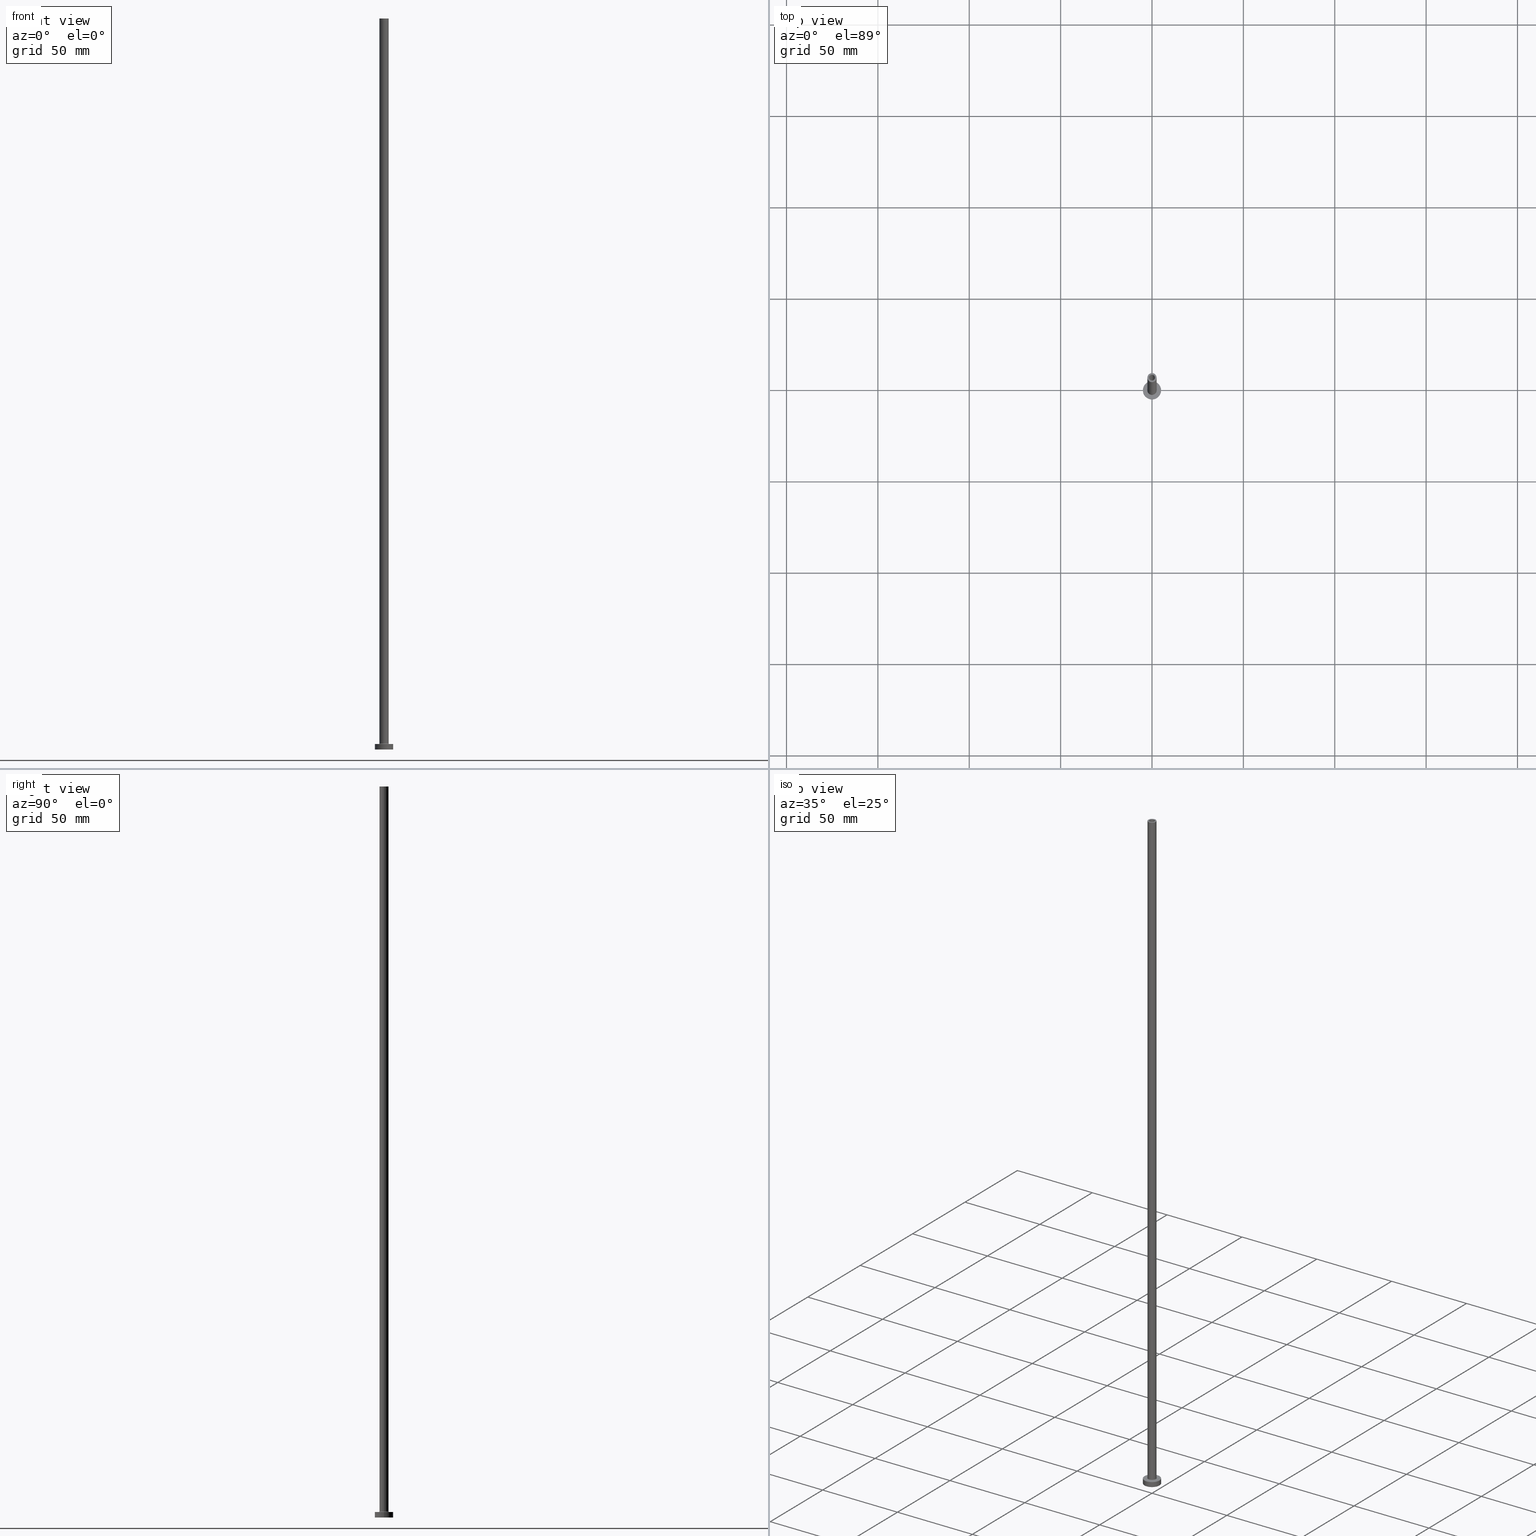
[diagram: canonical four-view strip — front | top / right | iso, engineering-drawing reading convention]
A machine part, canonical four-view strip (front | top / right | iso — engineering-drawing reading convention). The complete STEP part file that produces these views, byte-faithful:
ISO-10303-21;
HEADER;
FILE_DESCRIPTION (( 'STEP AP203' ),
    '1' );
FILE_NAME ('ec00.STEP',
    '2023-02-13T17:55:04',
    ( '' ),
    ( '' ),
    'SwSTEP 2.0',
    'SolidWorks 2019',
    '' );
FILE_SCHEMA (( 'CONFIG_CONTROL_DESIGN' ));
ENDSEC;

DATA;
#1 = EDGE_LOOP ( 'NONE', ( #460, #47, #260, #456 ) ) ;
#2 = DIRECTION ( 'NONE',  ( 1.000000000000000000, 0.000000000000000000, 0.000000000000000000 ) ) ;
#3 = LOCAL_TIME ( 18, 55, 4.000000000000000000, #433 ) ;
#4 = ORIENTED_EDGE ( 'NONE', *, *, #269, .T. ) ;
#5 = PERSON_AND_ORGANIZATION ( #345, #139 ) ;
#6 = VERTEX_POINT ( 'NONE', #350 ) ;
#7 = EDGE_CURVE ( 'NONE', #391, #154, #17, .T. ) ;
#8 = CALENDAR_DATE ( 2023, 13, 2 ) ;
#9 = CARTESIAN_POINT ( 'NONE',  ( -2.799999999999999822, 3.429011037612589276E-16, 3.000000000000012434 ) ) ;
#10 = ORIENTED_EDGE ( 'NONE', *, *, #179, .T. ) ;
#11 = DIRECTION ( 'NONE',  ( 1.000000000000000000, 0.000000000000000000, 0.000000000000000000 ) ) ;
#12 = PRODUCT ( 'ec00', 'ec00', '', ( #416 ) ) ;
#13 = CARTESIAN_POINT ( 'NONE',  ( 0.000000000000000000, 0.000000000000000000, 3.300000000000025135 ) ) ;
#14 = CYLINDRICAL_SURFACE ( 'NONE', #18, 1.750000000000000000 ) ;
#15 = ORIENTED_EDGE ( 'NONE', *, *, #247, .T. ) ;
#16 = CALENDAR_DATE ( 2023, 13, 2 ) ;
#17 = LINE ( 'NONE', #344, #316 ) ;
#18 = AXIS2_PLACEMENT_3D ( 'NONE', #241, #208, #381 ) ;
#19 = ORIENTED_EDGE ( 'NONE', *, *, #297, .T. ) ;
#20 =( NAMED_UNIT ( * ) PLANE_ANGLE_UNIT ( ) SI_UNIT ( $, .RADIAN. ) );
#21 = CYLINDRICAL_SURFACE ( 'NONE', #245, 1.600000000000000089 ) ;
#22 = APPROVAL ( #401, 'NEUR�EN�' ) ;
#23 = EDGE_LOOP ( 'NONE', ( #337, #351 ) ) ;
#24 = EDGE_CURVE ( 'NONE', #272, #238, #116, .T. ) ;
#25 = FACE_OUTER_BOUND ( 'NONE', #366, .T. ) ;
#26 = CIRCLE ( 'NONE', #170, 2.500000000000000000 ) ;
#27 = CARTESIAN_POINT ( 'NONE',  ( 2.500000000000000000, 3.061616997868383141E-16, 3.300000000000025135 ) ) ;
#28 = DIRECTION ( 'NONE',  ( -0.000000000000000000, -0.000000000000000000, -1.000000000000000000 ) ) ;
#29 = DIRECTION ( 'NONE',  ( -0.000000000000000000, -0.000000000000000000, -1.000000000000000000 ) ) ;
#30 = ORIENTED_EDGE ( 'NONE', *, *, #254, .F. ) ;
#31 = DIRECTION ( 'NONE',  ( 1.000000000000000000, 0.000000000000000000, 0.000000000000000000 ) ) ;
#32 = CARTESIAN_POINT ( 'NONE',  ( -5.000000000000000000, 0.000000000000000000, 0.000000000000000000 ) ) ;
#33 = ORIENTED_EDGE ( 'NONE', *, *, #290, .F. ) ;
#34 = UNCERTAINTY_MEASURE_WITH_UNIT (LENGTH_MEASURE( 1.000000000000000082E-05 ), #212, 'distance_accuracy_value', 'NONE');
#35 = APPLICATION_PROTOCOL_DEFINITION ( 'international standard', 'config_control_design', 1994, #195 ) ;
#36 = PRODUCT_RELATED_PRODUCT_CATEGORY ( 'detail', '', ( #12 ) ) ;
#37 = LINE ( 'NONE', #289, #357 ) ;
#38 = ORIENTED_EDGE ( 'NONE', *, *, #24, .T. ) ;
#39 = DIRECTION ( 'NONE',  ( -1.000000000000000000, 0.000000000000000000, 0.000000000000000000 ) ) ;
#40 = ORIENTED_EDGE ( 'NONE', *, *, #335, .F. ) ;
#41 = AXIS2_PLACEMENT_3D ( 'NONE', #359, #29, #185 ) ;
#42 = PERSON_AND_ORGANIZATION_ROLE ( 'design_supplier' ) ;
#43 = AXIS2_PLACEMENT_3D ( 'NONE', #355, #175, #64 ) ;
#44 = CARTESIAN_POINT ( 'NONE',  ( 0.000000000000000000, 0.000000000000000000, 3.000000000000000000 ) ) ;
#45 = ORIENTED_EDGE ( 'NONE', *, *, #438, .T. ) ;
#46 = DATE_TIME_ROLE ( 'classification_date' ) ;
#47 = ORIENTED_EDGE ( 'NONE', *, *, #319, .T. ) ;
#48 = ADVANCED_FACE ( 'NONE', ( #162 ), #315, .F. ) ;
#49 = CYLINDRICAL_SURFACE ( 'NONE', #413, 2.500000000000000000 ) ;
#50 = TOROIDAL_SURFACE ( 'NONE', #100, 2.799999999999999822, 0.2999999999999999889 ) ;
#51 = EDGE_CURVE ( 'NONE', #428, #209, #445, .T. ) ;
#52 = DIRECTION ( 'NONE',  ( 0.000000000000000000, 0.000000000000000000, -1.000000000000000000 ) ) ;
#53 = LOCAL_TIME ( 18, 55, 4.000000000000000000, #262 ) ;
#54 = DIRECTION ( 'NONE',  ( 0.000000000000000000, 0.000000000000000000, 1.000000000000000000 ) ) ;
#55 = ORIENTED_EDGE ( 'NONE', *, *, #265, .T. ) ;
#56 = EDGE_LOOP ( 'NONE', ( #348, #378 ) ) ;
#57 = DESIGN_CONTEXT ( 'detailed design', #195, 'design' ) ;
#58 = CIRCLE ( 'NONE', #288, 2.500000000000000000 ) ;
#59 = FACE_BOUND ( 'NONE', #301, .T. ) ;
#60 = APPROVAL_PERSON_ORGANIZATION ( #382, #128, #446 ) ;
#61 = DIRECTION ( 'NONE',  ( 1.000000000000000000, 0.000000000000000000, 0.000000000000000000 ) ) ;
#62 = ADVANCED_FACE ( 'NONE', ( #233 ), #49, .T. ) ;
#63 = EDGE_CURVE ( 'NONE', #238, #264, #442, .T. ) ;
#64 = DIRECTION ( 'NONE',  ( 1.000000000000000000, 0.000000000000000000, 0.000000000000000000 ) ) ;
#65 = EDGE_CURVE ( 'NONE', #82, #148, #104, .T. ) ;
#66 = AXIS2_PLACEMENT_3D ( 'NONE', #243, #457, #75 ) ;
#67 = CIRCLE ( 'NONE', #122, 1.750000000000000000 ) ;
#68 = EDGE_CURVE ( 'NONE', #191, #209, #252, .T. ) ;
#69 = DIRECTION ( 'NONE',  ( -0.000000000000000000, -0.000000000000000000, -1.000000000000000000 ) ) ;
#70 = ORIENTED_EDGE ( 'NONE', *, *, #63, .T. ) ;
#71 = FACE_OUTER_BOUND ( 'NONE', #156, .T. ) ;
#72 = CARTESIAN_POINT ( 'NONE',  ( 0.000000000000000000, 0.000000000000000000, 400.0000000000000000 ) ) ;
#73 = CIRCLE ( 'NONE', #66, 5.000000000000000000 ) ;
#74 = ORIENTED_EDGE ( 'NONE', *, *, #283, .T. ) ;
#75 = DIRECTION ( 'NONE',  ( 1.000000000000000000, 0.000000000000000000, 0.000000000000000000 ) ) ;
#76 = DIRECTION ( 'NONE',  ( 1.000000000000000000, 0.000000000000000000, 0.000000000000000000 ) ) ;
#77 = ORIENTED_EDGE ( 'NONE', *, *, #112, .T. ) ;
#78 = COORDINATED_UNIVERSAL_TIME_OFFSET ( 1, 0, .AHEAD. ) ;
#79 = DIRECTION ( 'NONE',  ( -0.000000000000000000, -0.000000000000000000, -1.000000000000000000 ) ) ;
#80 = EDGE_LOOP ( 'NONE', ( #15, #113, #203, #159 ) ) ;
#81 = APPROVAL_DATE_TIME ( #429, #92 ) ;
#82 = VERTEX_POINT ( 'NONE', #123 ) ;
#83 = CIRCLE ( 'NONE', #444, 1.600000000000000089 ) ;
#84 = DATE_AND_TIME ( #120, #3 ) ;
#85 = APPROVAL_PERSON_ORGANIZATION ( #5, #92, #395 ) ;
#86 = ORIENTED_EDGE ( 'NONE', *, *, #297, .F. ) ;
#87 = DIRECTION ( 'NONE',  ( 0.000000000000000000, 0.000000000000000000, 1.000000000000000000 ) ) ;
#88 = SHAPE_DEFINITION_REPRESENTATION ( #94, #143 ) ;
#89 = DIRECTION ( 'NONE',  ( 1.000000000000000000, 0.000000000000000000, 0.000000000000000000 ) ) ;
#90 = APPROVAL_DATE_TIME ( #173, #128 ) ;
#91 = AXIS2_PLACEMENT_3D ( 'NONE', #107, #218, #259 ) ;
#92 = APPROVAL ( #296, 'NEUR�EN�' ) ;
#93 = DIRECTION ( 'NONE',  ( 0.000000000000000000, 0.000000000000000000, -1.000000000000000000 ) ) ;
#94 = PRODUCT_DEFINITION_SHAPE ( 'NONE', 'NONE',  #362 ) ;
#95 = LOCAL_TIME ( 18, 55, 4.000000000000000000, #78 ) ;
#96 = ORIENTED_EDGE ( 'NONE', *, *, #269, .F. ) ;
#97 = APPROVAL_STATUS ( 'not_yet_approved' ) ;
#98 = DIRECTION ( 'NONE',  ( 0.000000000000000000, 0.000000000000000000, 1.000000000000000000 ) ) ;
#99 = DIRECTION ( 'NONE',  ( 0.000000000000000000, 0.000000000000000000, 1.000000000000000000 ) ) ;
#100 = AXIS2_PLACEMENT_3D ( 'NONE', #385, #293, #134 ) ;
#101 = CARTESIAN_POINT ( 'NONE',  ( 0.000000000000000000, 0.000000000000000000, 400.0000000000000000 ) ) ;
#102 = ORIENTED_EDGE ( 'NONE', *, *, #112, .F. ) ;
#103 = CARTESIAN_POINT ( 'NONE',  ( 0.000000000000000000, 0.000000000000000000, 3.000000000000000000 ) ) ;
#104 = CIRCLE ( 'NONE', #349, 1.600000000000000089 ) ;
#105 = ADVANCED_FACE ( 'NONE', ( #207 ), #176, .F. ) ;
#106 = AXIS2_PLACEMENT_3D ( 'NONE', #455, #227, #39 ) ;
#107 = CARTESIAN_POINT ( 'NONE',  ( 0.000000000000000000, 0.000000000000000000, 3.000000000000000000 ) ) ;
#108 = DIRECTION ( 'NONE',  ( -1.000000000000000000, 0.000000000000000000, 0.000000000000000000 ) ) ;
#109 = CYLINDRICAL_SURFACE ( 'NONE', #106, 1.750000000000000000 ) ;
#110 = EDGE_LOOP ( 'NONE', ( #331, #168, #432, #394 ) ) ;
#111 = DIRECTION ( 'NONE',  ( 0.000000000000000000, 0.000000000000000000, -1.000000000000000000 ) ) ;
#112 = EDGE_CURVE ( 'NONE', #209, #191, #430, .T. ) ;
#113 = ORIENTED_EDGE ( 'NONE', *, *, #167, .T. ) ;
#114 = DIRECTION ( 'NONE',  ( 1.000000000000000000, 0.000000000000000000, -0.000000000000000000 ) ) ;
#115 = EDGE_LOOP ( 'NONE', ( #400, #232 ) ) ;
#116 = CIRCLE ( 'NONE', #142, 1.750000000000000000 ) ;
#117 = VECTOR ( 'NONE', #132, 1000.000000000000000 ) ;
#118 = DIRECTION ( 'NONE',  ( -1.000000000000000000, 0.000000000000000000, 0.000000000000000000 ) ) ;
#119 = ORIENTED_EDGE ( 'NONE', *, *, #290, .T. ) ;
#120 = CALENDAR_DATE ( 2023, 13, 2 ) ;
#121 = ORIENTED_EDGE ( 'NONE', *, *, #51, .T. ) ;
#122 = AXIS2_PLACEMENT_3D ( 'NONE', #356, #28, #244 ) ;
#123 = CARTESIAN_POINT ( 'NONE',  ( 1.600000000000000089, 1.959434878635764737E-16, 355.0000000000000568 ) ) ;
#124 = DATE_AND_TIME ( #304, #261 ) ;
#125 = CLOSED_SHELL ( 'NONE', ( #48, #302, #105, #62, #280, #273, #126, #140, #370, #187, #417, #189, #215, #414 ) ) ;
#126 = ADVANCED_FACE ( 'NONE', ( #217, #418 ), #325, .T. ) ;
#127 = ORIENTED_EDGE ( 'NONE', *, *, #254, .T. ) ;
#128 = APPROVAL ( #97, 'NEUR�EN�' ) ;
#129 = EDGE_CURVE ( 'NONE', #389, #264, #67, .T. ) ;
#130 = CARTESIAN_POINT ( 'NONE',  ( 0.000000000000000000, 0.000000000000000000, 0.000000000000000000 ) ) ;
#131 = VECTOR ( 'NONE', #93, 1000.000000000000000 ) ;
#132 = DIRECTION ( 'NONE',  ( -0.000000000000000000, -0.000000000000000000, -1.000000000000000000 ) ) ;
#133 = AXIS2_PLACEMENT_3D ( 'NONE', #169, #321, #440 ) ;
#134 = DIRECTION ( 'NONE',  ( 1.000000000000000000, 0.000000000000000000, 0.000000000000000000 ) ) ;
#135 = DIRECTION ( 'NONE',  ( 1.000000000000000000, 0.000000000000000000, 0.000000000000000000 ) ) ;
#136 = CARTESIAN_POINT ( 'NONE',  ( 2.500000000000000000, 3.061616997868383141E-16, 400.0000000000000000 ) ) ;
#137 = DIRECTION ( 'NONE',  ( 0.000000000000000000, 0.000000000000000000, 1.000000000000000000 ) ) ;
#138 = AXIS2_PLACEMENT_3D ( 'NONE', #365, #145, #114 ) ;
#139 = ORGANIZATION ( 'NEUR�EN�', 'NEUR�EN�', '' ) ;
#140 = ADVANCED_FACE ( 'NONE', ( #59, #248 ), #383, .F. ) ;
#141 = DIRECTION ( 'NONE',  ( 1.000000000000000000, 0.000000000000000000, -0.000000000000000000 ) ) ;
#142 = AXIS2_PLACEMENT_3D ( 'NONE', #375, #405, #89 ) ;
#143 = ADVANCED_BREP_SHAPE_REPRESENTATION ( 'ec00', ( #458, #43 ), #450 ) ;
#144 = CIRCLE ( 'NONE', #41, 1.750000000000000000 ) ;
#145 = DIRECTION ( 'NONE',  ( 0.000000000000000000, 0.000000000000000000, 1.000000000000000000 ) ) ;
#146 = CARTESIAN_POINT ( 'NONE',  ( 0.000000000000000000, 0.000000000000000000, 400.0000000000000000 ) ) ;
#147 = CC_DESIGN_PERSON_AND_ORGANIZATION_ASSIGNMENT ( #188, #274, ( #12 ) ) ;
#148 = VERTEX_POINT ( 'NONE', #286 ) ;
#149 = CARTESIAN_POINT ( 'NONE',  ( 0.000000000000000000, 0.000000000000000000, 3.000000000000000000 ) ) ;
#150 = CARTESIAN_POINT ( 'NONE',  ( -1.750000000000000000, 0.000000000000000000, 355.0000000000000568 ) ) ;
#151 = ORIENTED_EDGE ( 'NONE', *, *, #319, .F. ) ;
#152 = LINE ( 'NONE', #339, #415 ) ;
#153 = AXIS2_PLACEMENT_3D ( 'NONE', #336, #342, #461 ) ;
#154 = VERTEX_POINT ( 'NONE', #27 ) ;
#155 = CARTESIAN_POINT ( 'NONE',  ( 1.750000000000000000, 2.143131898507868297E-16, 355.0000000000000568 ) ) ;
#156 = EDGE_LOOP ( 'NONE', ( #96, #86, #119, #228 ) ) ;
#157 = PERSON_AND_ORGANIZATION ( #345, #139 ) ;
#158 = CARTESIAN_POINT ( 'NONE',  ( 0.000000000000000000, 0.000000000000000000, 400.0000000000000000 ) ) ;
#159 = ORIENTED_EDGE ( 'NONE', *, *, #240, .F. ) ;
#160 = FACE_OUTER_BOUND ( 'NONE', #424, .T. ) ;
#161 = CIRCLE ( 'NONE', #216, 2.500000000000000000 ) ;
#162 = FACE_OUTER_BOUND ( 'NONE', #80, .T. ) ;
#163 = APPROVAL_ROLE ( '' ) ;
#164 = CARTESIAN_POINT ( 'NONE',  ( 0.000000000000000000, 0.000000000000000000, 400.0000000000000000 ) ) ;
#165 = LOCAL_TIME ( 18, 55, 4.000000000000000000, #443 ) ;
#166 = ORIENTED_EDGE ( 'NONE', *, *, #287, .F. ) ;
#167 = EDGE_CURVE ( 'NONE', #368, #82, #181, .T. ) ;
#168 = ORIENTED_EDGE ( 'NONE', *, *, #324, .T. ) ;
#169 = CARTESIAN_POINT ( 'NONE',  ( 0.000000000000000000, 0.000000000000000000, 400.0000000000000000 ) ) ;
#170 = AXIS2_PLACEMENT_3D ( 'NONE', #72, #291, #76 ) ;
#171 = CC_DESIGN_APPROVAL ( #128, ( #384 ) ) ;
#172 = CARTESIAN_POINT ( 'NONE',  ( 5.000000000000000000, 6.123233995736766282E-16, 3.000000000000000000 ) ) ;
#173 = DATE_AND_TIME ( #16, #165 ) ;
#174 = EDGE_CURVE ( 'NONE', #374, #391, #26, .T. ) ;
#175 = DIRECTION ( 'NONE',  ( 0.000000000000000000, 0.000000000000000000, 1.000000000000000000 ) ) ;
#176 = TOROIDAL_SURFACE ( 'NONE', #182, 2.799999999999999822, 0.2999999999999999889 ) ;
#177 = ORIENTED_EDGE ( 'NONE', *, *, #7, .F. ) ;
#178 = AXIS2_PLACEMENT_3D ( 'NONE', #196, #333, #230 ) ;
#179 = EDGE_CURVE ( 'NONE', #186, #191, #152, .T. ) ;
#180 = DIRECTION ( 'NONE',  ( -0.000000000000000000, -0.000000000000000000, -1.000000000000000000 ) ) ;
#181 = LINE ( 'NONE', #328, #377 ) ;
#182 = AXIS2_PLACEMENT_3D ( 'NONE', #13, #411, #135 ) ;
#183 = CC_DESIGN_PERSON_AND_ORGANIZATION_ASSIGNMENT ( #226, #229, ( #303 ) ) ;
#184 = AXIS2_PLACEMENT_3D ( 'NONE', #213, #137, #141 ) ;
#185 = DIRECTION ( 'NONE',  ( 1.000000000000000000, 0.000000000000000000, 0.000000000000000000 ) ) ;
#186 = VERTEX_POINT ( 'NONE', #367 ) ;
#187 = ADVANCED_FACE ( 'NONE', ( #363, #330 ), #266, .T. ) ;
#188 = PERSON_AND_ORGANIZATION ( #345, #139 ) ;
#189 = ADVANCED_FACE ( 'NONE', ( #423 ), #109, .F. ) ;
#190 = CARTESIAN_POINT ( 'NONE',  ( -2.799999999999999822, 3.429011037612588783E-16, 3.300000000000025135 ) ) ;
#191 = VERTEX_POINT ( 'NONE', #32 ) ;
#192 = DATE_TIME_ROLE ( 'creation_date' ) ;
#193 = CARTESIAN_POINT ( 'NONE',  ( -1.600000000000000089, 0.000000000000000000, 400.0000000000000000 ) ) ;
#194 = ORIENTED_EDGE ( 'NONE', *, *, #129, .F. ) ;
#195 = APPLICATION_CONTEXT ( 'configuration controlled 3d designs of mechanical parts and assemblies' ) ;
#196 = CARTESIAN_POINT ( 'NONE',  ( 0.000000000000000000, 0.000000000000000000, 400.0000000000000000 ) ) ;
#197 = AXIS2_PLACEMENT_3D ( 'NONE', #449, #214, #61 ) ;
#198 = ORIENTED_EDGE ( 'NONE', *, *, #7, .T. ) ;
#199 = SECURITY_CLASSIFICATION_LEVEL ( 'unclassified' ) ;
#200 = LINE ( 'NONE', #388, #281 ) ;
#201 = ORIENTED_EDGE ( 'NONE', *, *, #68, .F. ) ;
#202 = AXIS2_PLACEMENT_3D ( 'NONE', #404, #87, #235 ) ;
#203 = ORIENTED_EDGE ( 'NONE', *, *, #265, .F. ) ;
#204 = AXIS2_PLACEMENT_3D ( 'NONE', #190, #299, #251 ) ;
#205 = DIRECTION ( 'NONE',  ( -0.000000000000000000, -0.000000000000000000, -1.000000000000000000 ) ) ;
#206 = DIRECTION ( 'NONE',  ( 1.000000000000000000, 0.000000000000000000, 0.000000000000000000 ) ) ;
#207 = FACE_OUTER_BOUND ( 'NONE', #426, .T. ) ;
#208 = DIRECTION ( 'NONE',  ( 0.000000000000000000, 0.000000000000000000, -1.000000000000000000 ) ) ;
#209 = VERTEX_POINT ( 'NONE', #294 ) ;
#210 = VERTEX_POINT ( 'NONE', #193 ) ;
#211 = CIRCLE ( 'NONE', #197, 2.500000000000000000 ) ;
#212 =( LENGTH_UNIT ( ) NAMED_UNIT ( * ) SI_UNIT ( .MILLI., .METRE. ) );
#213 = CARTESIAN_POINT ( 'NONE',  ( 0.000000000000000000, 0.000000000000000000, 0.000000000000000000 ) ) ;
#214 = DIRECTION ( 'NONE',  ( 0.000000000000000000, 0.000000000000000000, 1.000000000000000000 ) ) ;
#215 = ADVANCED_FACE ( 'NONE', ( #399, #224 ), #255, .F. ) ;
#216 = AXIS2_PLACEMENT_3D ( 'NONE', #277, #98, #206 ) ;
#217 = FACE_BOUND ( 'NONE', #23, .T. ) ;
#218 = DIRECTION ( 'NONE',  ( 0.000000000000000000, 0.000000000000000000, 1.000000000000000000 ) ) ;
#219 = ORIENTED_EDGE ( 'NONE', *, *, #379, .T. ) ;
#220 = AXIS2_PLACEMENT_3D ( 'NONE', #149, #447, #31 ) ;
#221 = CARTESIAN_POINT ( 'NONE',  ( 1.750000000000000000, 2.143131898507868297E-16, 0.000000000000000000 ) ) ;
#222 = EDGE_LOOP ( 'NONE', ( #372, #30, #10, #448 ) ) ;
#223 = APPLICATION_CONTEXT ( 'configuration controlled 3d designs of mechanical parts and assemblies' ) ;
#224 = FACE_OUTER_BOUND ( 'NONE', #242, .T. ) ;
#225 = EDGE_LOOP ( 'NONE', ( #201, #102 ) ) ;
#226 = PERSON_AND_ORGANIZATION ( #345, #139 ) ;
#227 = DIRECTION ( 'NONE',  ( 0.000000000000000000, 0.000000000000000000, -1.000000000000000000 ) ) ;
#228 = ORIENTED_EDGE ( 'NONE', *, *, #439, .F. ) ;
#229 = PERSON_AND_ORGANIZATION_ROLE ( 'creator' ) ;
#230 = DIRECTION ( 'NONE',  ( 1.000000000000000000, 0.000000000000000000, -0.000000000000000000 ) ) ;
#231 = CIRCLE ( 'NONE', #298, 0.2999999999999999334 ) ;
#232 = ORIENTED_EDGE ( 'NONE', *, *, #324, .F. ) ;
#233 = FACE_OUTER_BOUND ( 'NONE', #278, .T. ) ;
#234 = CARTESIAN_POINT ( 'NONE',  ( 0.000000000000000000, 0.000000000000000000, 355.0000000000000568 ) ) ;
#235 = DIRECTION ( 'NONE',  ( 1.000000000000000000, 0.000000000000000000, 0.000000000000000000 ) ) ;
#236 = CARTESIAN_POINT ( 'NONE',  ( 0.000000000000000000, 0.000000000000000000, 400.0000000000000000 ) ) ;
#237 = CARTESIAN_POINT ( 'NONE',  ( 2.799999999999999822, 0.000000000000000000, 3.000000000000012434 ) ) ;
#238 = VERTEX_POINT ( 'NONE', #155 ) ;
#239 = AXIS2_PLACEMENT_3D ( 'NONE', #103, #99, #386 ) ;
#240 = EDGE_CURVE ( 'NONE', #210, #148, #37, .T. ) ;
#241 = CARTESIAN_POINT ( 'NONE',  ( 0.000000000000000000, 0.000000000000000000, 359.9497474683058158 ) ) ;
#242 = EDGE_LOOP ( 'NONE', ( #408, #151 ) ) ;
#243 = CARTESIAN_POINT ( 'NONE',  ( 0.000000000000000000, 0.000000000000000000, 3.000000000000000000 ) ) ;
#244 = DIRECTION ( 'NONE',  ( 1.000000000000000000, 0.000000000000000000, 0.000000000000000000 ) ) ;
#245 = AXIS2_PLACEMENT_3D ( 'NONE', #146, #454, #285 ) ;
#246 = CARTESIAN_POINT ( 'NONE',  ( 5.000000000000000000, 6.123233995736766282E-16, 3.000000000000000000 ) ) ;
#247 = EDGE_CURVE ( 'NONE', #210, #368, #361, .T. ) ;
#248 = FACE_OUTER_BOUND ( 'NONE', #225, .T. ) ;
#249 = AXIS2_PLACEMENT_3D ( 'NONE', #101, #180, #108 ) ;
#250 = CC_DESIGN_PERSON_AND_ORGANIZATION_ASSIGNMENT ( #341, #276, ( #362 ) ) ;
#251 = DIRECTION ( 'NONE',  ( -1.000000000000000000, 1.224646799147353207E-16, 0.000000000000000000 ) ) ;
#252 = CIRCLE ( 'NONE', #453, 5.000000000000000000 ) ;
#253 =( NAMED_UNIT ( * ) SI_UNIT ( $, .STERADIAN. ) SOLID_ANGLE_UNIT ( ) );
#254 = EDGE_CURVE ( 'NONE', #186, #428, #387, .T. ) ;
#255 = PLANE ( 'NONE',  #138 ) ;
#256 = EDGE_LOOP ( 'NONE', ( #127, #219 ) ) ;
#257 = CARTESIAN_POINT ( 'NONE',  ( -2.500000000000000000, 0.000000000000000000, 400.0000000000000000 ) ) ;
#258 = AXIS2_PLACEMENT_3D ( 'NONE', #234, #347, #11 ) ;
#259 = DIRECTION ( 'NONE',  ( 1.000000000000000000, 0.000000000000000000, 0.000000000000000000 ) ) ;
#260 = ORIENTED_EDGE ( 'NONE', *, *, #358, .T. ) ;
#261 = LOCAL_TIME ( 18, 55, 4.000000000000000000, #311 ) ;
#262 = COORDINATED_UNIVERSAL_TIME_OFFSET ( 1, 0, .AHEAD. ) ;
#263 = DIRECTION ( 'NONE',  ( 0.000000000000000000, 0.000000000000000000, 1.000000000000000000 ) ) ;
#264 = VERTEX_POINT ( 'NONE', #221 ) ;
#265 = EDGE_CURVE ( 'NONE', #148, #82, #83, .T. ) ;
#266 = PLANE ( 'NONE',  #178 ) ;
#267 = EDGE_LOOP ( 'NONE', ( #55, #343 ) ) ;
#268 = CALENDAR_DATE ( 2023, 13, 2 ) ;
#269 = EDGE_CURVE ( 'NONE', #6, #292, #419, .T. ) ;
#270 = DIRECTION ( 'NONE',  ( 1.000000000000000000, 0.000000000000000000, 0.000000000000000000 ) ) ;
#271 = CIRCLE ( 'NONE', #409, 1.600000000000000089 ) ;
#272 = VERTEX_POINT ( 'NONE', #150 ) ;
#273 = ADVANCED_FACE ( 'NONE', ( #425 ), #427, .T. ) ;
#274 = PERSON_AND_ORGANIZATION_ROLE ( 'design_owner' ) ;
#275 = CARTESIAN_POINT ( 'NONE',  ( 2.799999999999999822, 0.000000000000000000, 3.300000000000025135 ) ) ;
#276 = PERSON_AND_ORGANIZATION_ROLE ( 'creator' ) ;
#277 = CARTESIAN_POINT ( 'NONE',  ( 0.000000000000000000, 0.000000000000000000, 3.300000000000025135 ) ) ;
#278 = EDGE_LOOP ( 'NONE', ( #40, #198, #19, #310 ) ) ;
#279 = LINE ( 'NONE', #410, #131 ) ;
#280 = ADVANCED_FACE ( 'NONE', ( #371 ), #305, .T. ) ;
#281 = VECTOR ( 'NONE', #69, 1000.000000000000000 ) ;
#282 = DIRECTION ( 'NONE',  ( 1.000000000000000000, 0.000000000000000000, 0.000000000000000000 ) ) ;
#283 = EDGE_CURVE ( 'NONE', #374, #6, #200, .T. ) ;
#284 = DIRECTION ( 'NONE',  ( -1.000000000000000000, 0.000000000000000000, 0.000000000000000000 ) ) ;
#285 = DIRECTION ( 'NONE',  ( -1.000000000000000000, 0.000000000000000000, 0.000000000000000000 ) ) ;
#286 = CARTESIAN_POINT ( 'NONE',  ( -1.600000000000000089, 0.000000000000000000, 355.0000000000000568 ) ) ;
#287 = EDGE_CURVE ( 'NONE', #264, #389, #144, .T. ) ;
#288 = AXIS2_PLACEMENT_3D ( 'NONE', #164, #314, #441 ) ;
#289 = CARTESIAN_POINT ( 'NONE',  ( -1.600000000000000089, 0.000000000000000000, 400.0000000000000000 ) ) ;
#290 = EDGE_CURVE ( 'NONE', #154, #360, #231, .T. ) ;
#291 = DIRECTION ( 'NONE',  ( 0.000000000000000000, 0.000000000000000000, 1.000000000000000000 ) ) ;
#292 = VERTEX_POINT ( 'NONE', #9 ) ;
#293 = DIRECTION ( 'NONE',  ( 0.000000000000000000, 0.000000000000000000, 1.000000000000000000 ) ) ;
#294 = CARTESIAN_POINT ( 'NONE',  ( 5.000000000000000000, 6.123233995736766282E-16, 0.000000000000000000 ) ) ;
#295 = ORIENTED_EDGE ( 'NONE', *, *, #379, .F. ) ;
#296 = APPROVAL_STATUS ( 'not_yet_approved' ) ;
#297 = EDGE_CURVE ( 'NONE', #154, #6, #161, .T. ) ;
#298 = AXIS2_PLACEMENT_3D ( 'NONE', #275, #317, #52 ) ;
#299 = DIRECTION ( 'NONE',  ( 1.224646799147353207E-16, 1.000000000000000000, -0.000000000000000000 ) ) ;
#300 = CC_DESIGN_APPROVAL ( #22, ( #362 ) ) ;
#301 = EDGE_LOOP ( 'NONE', ( #194, #166 ) ) ;
#302 = ADVANCED_FACE ( 'NONE', ( #160 ), #14, .F. ) ;
#303 = PRODUCT_DEFINITION_FORMATION_WITH_SPECIFIED_SOURCE ( 'LIBOVOLN�', '', #12, .NOT_KNOWN. ) ;
#304 = CALENDAR_DATE ( 2023, 13, 2 ) ;
#305 = CYLINDRICAL_SURFACE ( 'NONE', #326, 5.000000000000000000 ) ;
#306 = VECTOR ( 'NONE', #322, 1000.000000000000000 ) ;
#307 = EDGE_LOOP ( 'NONE', ( #295, #121, #77, #364 ) ) ;
#308 = PERSON_AND_ORGANIZATION_ROLE ( 'classification_officer' ) ;
#309 = DIRECTION ( 'NONE',  ( 0.000000000000000000, 0.000000000000000000, 1.000000000000000000 ) ) ;
#310 = ORIENTED_EDGE ( 'NONE', *, *, #283, .F. ) ;
#311 = COORDINATED_UNIVERSAL_TIME_OFFSET ( 1, 0, .AHEAD. ) ;
#312 = CIRCLE ( 'NONE', #258, 1.750000000000000000 ) ;
#313 = CARTESIAN_POINT ( 'NONE',  ( 0.000000000000000000, 0.000000000000000000, 355.0000000000000568 ) ) ;
#314 = DIRECTION ( 'NONE',  ( 0.000000000000000000, 0.000000000000000000, 1.000000000000000000 ) ) ;
#315 = CYLINDRICAL_SURFACE ( 'NONE', #133, 1.600000000000000089 ) ;
#316 = VECTOR ( 'NONE', #205, 1000.000000000000000 ) ;
#317 = DIRECTION ( 'NONE',  ( 0.000000000000000000, -1.000000000000000000, 0.000000000000000000 ) ) ;
#318 = DIRECTION ( 'NONE',  ( -0.000000000000000000, -0.000000000000000000, -1.000000000000000000 ) ) ;
#319 = EDGE_CURVE ( 'NONE', #238, #272, #312, .T. ) ;
#320 = AXIS2_PLACEMENT_3D ( 'NONE', #396, #79, #421 ) ;
#321 = DIRECTION ( 'NONE',  ( 0.000000000000000000, 0.000000000000000000, -1.000000000000000000 ) ) ;
#322 = DIRECTION ( 'NONE',  ( 0.000000000000000000, 0.000000000000000000, -1.000000000000000000 ) ) ;
#323 = APPLICATION_PROTOCOL_DEFINITION ( 'international standard', 'config_control_design', 1994, #223 ) ;
#324 = EDGE_CURVE ( 'NONE', #368, #210, #271, .T. ) ;
#325 = PLANE ( 'NONE',  #239 ) ;
#326 = AXIS2_PLACEMENT_3D ( 'NONE', #44, #431, #118 ) ;
#327 = FACE_OUTER_BOUND ( 'NONE', #110, .T. ) ;
#328 = CARTESIAN_POINT ( 'NONE',  ( 1.600000000000000089, 1.959434878635764737E-16, 400.0000000000000000 ) ) ;
#329 = CIRCLE ( 'NONE', #436, 2.799999999999999822 ) ;
#330 = FACE_OUTER_BOUND ( 'NONE', #56, .T. ) ;
#331 = ORIENTED_EDGE ( 'NONE', *, *, #167, .F. ) ;
#332 = CARTESIAN_POINT ( 'NONE',  ( -1.750000000000000000, 0.000000000000000000, 0.000000000000000000 ) ) ;
#333 = DIRECTION ( 'NONE',  ( 0.000000000000000000, 0.000000000000000000, 1.000000000000000000 ) ) ;
#334 = ORIENTED_EDGE ( 'NONE', *, *, #287, .T. ) ;
#335 = EDGE_CURVE ( 'NONE', #391, #374, #58, .T. ) ;
#336 = CARTESIAN_POINT ( 'NONE',  ( 0.000000000000000000, 0.000000000000000000, 400.0000000000000000 ) ) ;
#337 = ORIENTED_EDGE ( 'NONE', *, *, #402, .T. ) ;
#338 = CIRCLE ( 'NONE', #220, 2.799999999999999822 ) ;
#339 = CARTESIAN_POINT ( 'NONE',  ( -5.000000000000000000, 0.000000000000000000, 3.000000000000000000 ) ) ;
#340 = ORIENTED_EDGE ( 'NONE', *, *, #358, .F. ) ;
#341 = PERSON_AND_ORGANIZATION ( #345, #139 ) ;
#342 = DIRECTION ( 'NONE',  ( 0.000000000000000000, 0.000000000000000000, 1.000000000000000000 ) ) ;
#343 = ORIENTED_EDGE ( 'NONE', *, *, #65, .T. ) ;
#344 = CARTESIAN_POINT ( 'NONE',  ( 2.500000000000000000, 3.061616997868383141E-16, 400.0000000000000000 ) ) ;
#345 = PERSON ( 'NEUR�EN�', 'NEUR�EN�', 'NEUR�EN�', ('NEUR�EN�'), ('NEUR�EN�'), ('NEUR�EN�') ) ;
#346 = DIRECTION ( 'NONE',  ( 0.000000000000000000, 0.000000000000000000, 1.000000000000000000 ) ) ;
#347 = DIRECTION ( 'NONE',  ( 0.000000000000000000, 0.000000000000000000, 1.000000000000000000 ) ) ;
#348 = ORIENTED_EDGE ( 'NONE', *, *, #174, .T. ) ;
#349 = AXIS2_PLACEMENT_3D ( 'NONE', #313, #54, #437 ) ;
#350 = CARTESIAN_POINT ( 'NONE',  ( -2.500000000000000000, 0.000000000000000000, 3.300000000000025135 ) ) ;
#351 = ORIENTED_EDGE ( 'NONE', *, *, #439, .T. ) ;
#352 = CC_DESIGN_SECURITY_CLASSIFICATION ( #384, ( #303 ) ) ;
#353 = CARTESIAN_POINT ( 'NONE',  ( 0.000000000000000000, 0.000000000000000000, 3.000000000000000000 ) ) ;
#354 = DIRECTION ( 'NONE',  ( -0.000000000000000000, -0.000000000000000000, -1.000000000000000000 ) ) ;
#355 = CARTESIAN_POINT ( 'NONE',  ( 0.000000000000000000, 0.000000000000000000, 0.000000000000000000 ) ) ;
#356 = CARTESIAN_POINT ( 'NONE',  ( 0.000000000000000000, 0.000000000000000000, 0.000000000000000000 ) ) ;
#357 = VECTOR ( 'NONE', #111, 1000.000000000000000 ) ;
#358 = EDGE_CURVE ( 'NONE', #272, #389, #279, .T. ) ;
#359 = CARTESIAN_POINT ( 'NONE',  ( 0.000000000000000000, 0.000000000000000000, 0.000000000000000000 ) ) ;
#360 = VERTEX_POINT ( 'NONE', #237 ) ;
#361 = CIRCLE ( 'NONE', #153, 1.600000000000000089 ) ;
#362 = PRODUCT_DEFINITION ( 'NEZN�M�', '', #303, #57 ) ;
#363 = FACE_BOUND ( 'NONE', #115, .T. ) ;
#364 = ORIENTED_EDGE ( 'NONE', *, *, #179, .F. ) ;
#365 = CARTESIAN_POINT ( 'NONE',  ( 0.000000000000000000, 0.000000000000000000, 355.0000000000000568 ) ) ;
#366 = EDGE_LOOP ( 'NONE', ( #177, #397, #74, #45 ) ) ;
#367 = CARTESIAN_POINT ( 'NONE',  ( -5.000000000000000000, 0.000000000000000000, 3.000000000000000000 ) ) ;
#368 = VERTEX_POINT ( 'NONE', #403 ) ;
#369 = PERSON_AND_ORGANIZATION ( #345, #139 ) ;
#370 = ADVANCED_FACE ( 'NONE', ( #25 ), #392, .T. ) ;
#371 = FACE_OUTER_BOUND ( 'NONE', #307, .T. ) ;
#372 = ORIENTED_EDGE ( 'NONE', *, *, #51, .F. ) ;
#373 = CC_DESIGN_APPROVAL ( #92, ( #303 ) ) ;
#374 = VERTEX_POINT ( 'NONE', #257 ) ;
#375 = CARTESIAN_POINT ( 'NONE',  ( 0.000000000000000000, 0.000000000000000000, 355.0000000000000568 ) ) ;
#376 = CC_DESIGN_DATE_AND_TIME_ASSIGNMENT ( #84, #46, ( #384 ) ) ;
#377 = VECTOR ( 'NONE', #390, 1000.000000000000000 ) ;
#378 = ORIENTED_EDGE ( 'NONE', *, *, #335, .T. ) ;
#379 = EDGE_CURVE ( 'NONE', #428, #186, #73, .T. ) ;
#380 = ORIENTED_EDGE ( 'NONE', *, *, #438, .F. ) ;
#381 = DIRECTION ( 'NONE',  ( -1.000000000000000000, 0.000000000000000000, 0.000000000000000000 ) ) ;
#382 = PERSON_AND_ORGANIZATION ( #345, #139 ) ;
#383 = PLANE ( 'NONE',  #184 ) ;
#384 = SECURITY_CLASSIFICATION ( '', '', #199 ) ;
#385 = CARTESIAN_POINT ( 'NONE',  ( 0.000000000000000000, 0.000000000000000000, 3.300000000000025135 ) ) ;
#386 = DIRECTION ( 'NONE',  ( 1.000000000000000000, 0.000000000000000000, -0.000000000000000000 ) ) ;
#387 = CIRCLE ( 'NONE', #91, 5.000000000000000000 ) ;
#388 = CARTESIAN_POINT ( 'NONE',  ( -2.500000000000000000, 0.000000000000000000, 400.0000000000000000 ) ) ;
#389 = VERTEX_POINT ( 'NONE', #332 ) ;
#390 = DIRECTION ( 'NONE',  ( 0.000000000000000000, 0.000000000000000000, -1.000000000000000000 ) ) ;
#391 = VERTEX_POINT ( 'NONE', #136 ) ;
#392 = CYLINDRICAL_SURFACE ( 'NONE', #249, 2.500000000000000000 ) ;
#393 = CARTESIAN_POINT ( 'NONE',  ( 0.000000000000000000, 0.000000000000000000, 355.0000000000000568 ) ) ;
#394 = ORIENTED_EDGE ( 'NONE', *, *, #65, .F. ) ;
#395 = APPROVAL_ROLE ( '' ) ;
#396 = CARTESIAN_POINT ( 'NONE',  ( 0.000000000000000000, 0.000000000000000000, 3.000000000000000000 ) ) ;
#397 = ORIENTED_EDGE ( 'NONE', *, *, #174, .F. ) ;
#398 = APPROVAL_DATE_TIME ( #124, #22 ) ;
#399 = FACE_BOUND ( 'NONE', #267, .T. ) ;
#400 = ORIENTED_EDGE ( 'NONE', *, *, #247, .F. ) ;
#401 = APPROVAL_STATUS ( 'not_yet_approved' ) ;
#402 = EDGE_CURVE ( 'NONE', #360, #292, #338, .T. ) ;
#403 = CARTESIAN_POINT ( 'NONE',  ( 1.600000000000000089, 1.959434878635764737E-16, 400.0000000000000000 ) ) ;
#404 = CARTESIAN_POINT ( 'NONE',  ( 0.000000000000000000, 0.000000000000000000, 0.000000000000000000 ) ) ;
#405 = DIRECTION ( 'NONE',  ( 0.000000000000000000, 0.000000000000000000, 1.000000000000000000 ) ) ;
#406 = CC_DESIGN_PERSON_AND_ORGANIZATION_ASSIGNMENT ( #369, #42, ( #303 ) ) ;
#407 = DATE_AND_TIME ( #268, #53 ) ;
#408 = ORIENTED_EDGE ( 'NONE', *, *, #24, .F. ) ;
#409 = AXIS2_PLACEMENT_3D ( 'NONE', #158, #309, #270 ) ;
#410 = CARTESIAN_POINT ( 'NONE',  ( -1.750000000000000000, 0.000000000000000000, 359.9497474683058158 ) ) ;
#411 = DIRECTION ( 'NONE',  ( 0.000000000000000000, 0.000000000000000000, 1.000000000000000000 ) ) ;
#412 = CARTESIAN_POINT ( 'NONE',  ( 1.750000000000000000, 2.143131898507868297E-16, 359.9497474683058158 ) ) ;
#413 = AXIS2_PLACEMENT_3D ( 'NONE', #236, #318, #284 ) ;
#414 = ADVANCED_FACE ( 'NONE', ( #327 ), #21, .F. ) ;
#415 = VECTOR ( 'NONE', #459, 1000.000000000000000 ) ;
#416 = MECHANICAL_CONTEXT ( 'NONE', #223, 'mechanical' ) ;
#417 = ADVANCED_FACE ( 'NONE', ( #71 ), #50, .F. ) ;
#418 = FACE_OUTER_BOUND ( 'NONE', #256, .T. ) ;
#419 = CIRCLE ( 'NONE', #204, 0.2999999999999999334 ) ;
#420 = CC_DESIGN_DATE_AND_TIME_ASSIGNMENT ( #407, #192, ( #362 ) ) ;
#421 = DIRECTION ( 'NONE',  ( -1.000000000000000000, 0.000000000000000000, 0.000000000000000000 ) ) ;
#422 = DIRECTION ( 'NONE',  ( 1.000000000000000000, 0.000000000000000000, 0.000000000000000000 ) ) ;
#423 = FACE_OUTER_BOUND ( 'NONE', #1, .T. ) ;
#424 = EDGE_LOOP ( 'NONE', ( #38, #70, #334, #340 ) ) ;
#425 = FACE_OUTER_BOUND ( 'NONE', #222, .T. ) ;
#426 = EDGE_LOOP ( 'NONE', ( #380, #4, #434, #33 ) ) ;
#427 = CYLINDRICAL_SURFACE ( 'NONE', #320, 5.000000000000000000 ) ;
#428 = VERTEX_POINT ( 'NONE', #246 ) ;
#429 = DATE_AND_TIME ( #8, #95 ) ;
#430 = CIRCLE ( 'NONE', #202, 5.000000000000000000 ) ;
#431 = DIRECTION ( 'NONE',  ( -0.000000000000000000, -0.000000000000000000, -1.000000000000000000 ) ) ;
#432 = ORIENTED_EDGE ( 'NONE', *, *, #240, .T. ) ;
#433 = COORDINATED_UNIVERSAL_TIME_OFFSET ( 1, 0, .AHEAD. ) ;
#434 = ORIENTED_EDGE ( 'NONE', *, *, #402, .F. ) ;
#435 = PERSON_AND_ORGANIZATION ( #345, #139 ) ;
#436 = AXIS2_PLACEMENT_3D ( 'NONE', #353, #354, #422 ) ;
#437 = DIRECTION ( 'NONE',  ( 1.000000000000000000, 0.000000000000000000, 0.000000000000000000 ) ) ;
#438 = EDGE_CURVE ( 'NONE', #6, #154, #211, .T. ) ;
#439 = EDGE_CURVE ( 'NONE', #292, #360, #329, .T. ) ;
#440 = DIRECTION ( 'NONE',  ( -1.000000000000000000, 0.000000000000000000, 0.000000000000000000 ) ) ;
#441 = DIRECTION ( 'NONE',  ( 1.000000000000000000, 0.000000000000000000, 0.000000000000000000 ) ) ;
#442 = LINE ( 'NONE', #412, #306 ) ;
#443 = COORDINATED_UNIVERSAL_TIME_OFFSET ( 1, 0, .AHEAD. ) ;
#444 = AXIS2_PLACEMENT_3D ( 'NONE', #393, #263, #2 ) ;
#445 = LINE ( 'NONE', #172, #117 ) ;
#446 = APPROVAL_ROLE ( '' ) ;
#447 = DIRECTION ( 'NONE',  ( -0.000000000000000000, -0.000000000000000000, -1.000000000000000000 ) ) ;
#448 = ORIENTED_EDGE ( 'NONE', *, *, #68, .T. ) ;
#449 = CARTESIAN_POINT ( 'NONE',  ( 0.000000000000000000, 0.000000000000000000, 3.300000000000025135 ) ) ;
#450 =( GEOMETRIC_REPRESENTATION_CONTEXT ( 3 ) GLOBAL_UNCERTAINTY_ASSIGNED_CONTEXT ( ( #34 ) ) GLOBAL_UNIT_ASSIGNED_CONTEXT ( ( #212, #20, #253 ) ) REPRESENTATION_CONTEXT ( 'NONE', 'WORKASPACE' ) );
#451 = CC_DESIGN_PERSON_AND_ORGANIZATION_ASSIGNMENT ( #157, #308, ( #384 ) ) ;
#452 = APPROVAL_PERSON_ORGANIZATION ( #435, #22, #163 ) ;
#453 = AXIS2_PLACEMENT_3D ( 'NONE', #130, #346, #282 ) ;
#454 = DIRECTION ( 'NONE',  ( 0.000000000000000000, 0.000000000000000000, -1.000000000000000000 ) ) ;
#455 = CARTESIAN_POINT ( 'NONE',  ( 0.000000000000000000, 0.000000000000000000, 359.9497474683058158 ) ) ;
#456 = ORIENTED_EDGE ( 'NONE', *, *, #129, .T. ) ;
#457 = DIRECTION ( 'NONE',  ( 0.000000000000000000, 0.000000000000000000, 1.000000000000000000 ) ) ;
#458 = MANIFOLD_SOLID_BREP ( 'Odebrat vysunut�m4', #125 ) ;
#459 = DIRECTION ( 'NONE',  ( -0.000000000000000000, -0.000000000000000000, -1.000000000000000000 ) ) ;
#460 = ORIENTED_EDGE ( 'NONE', *, *, #63, .F. ) ;
#461 = DIRECTION ( 'NONE',  ( 1.000000000000000000, 0.000000000000000000, 0.000000000000000000 ) ) ;
ENDSEC;
END-ISO-10303-21;
